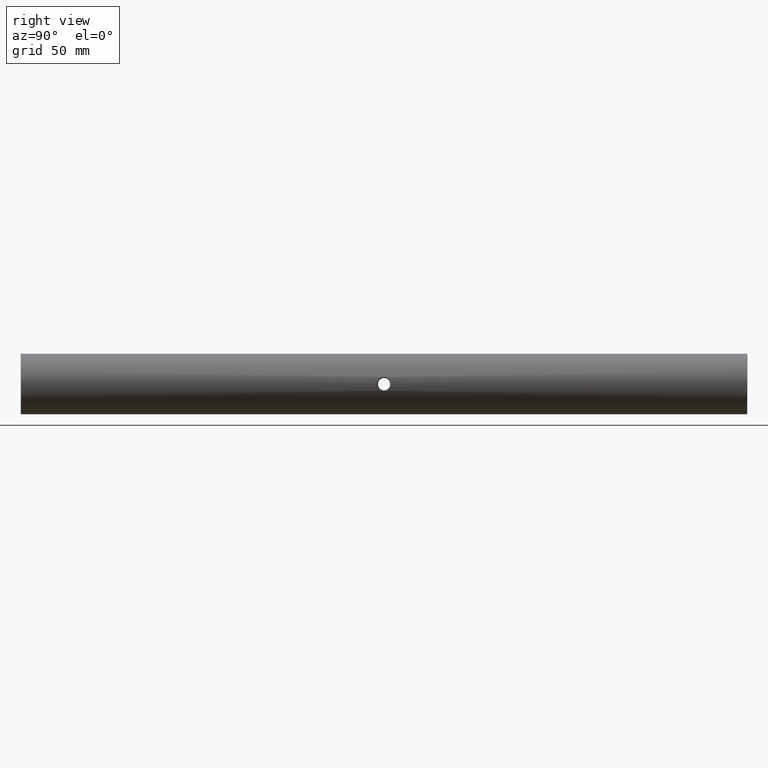
[diagram: clean part render]
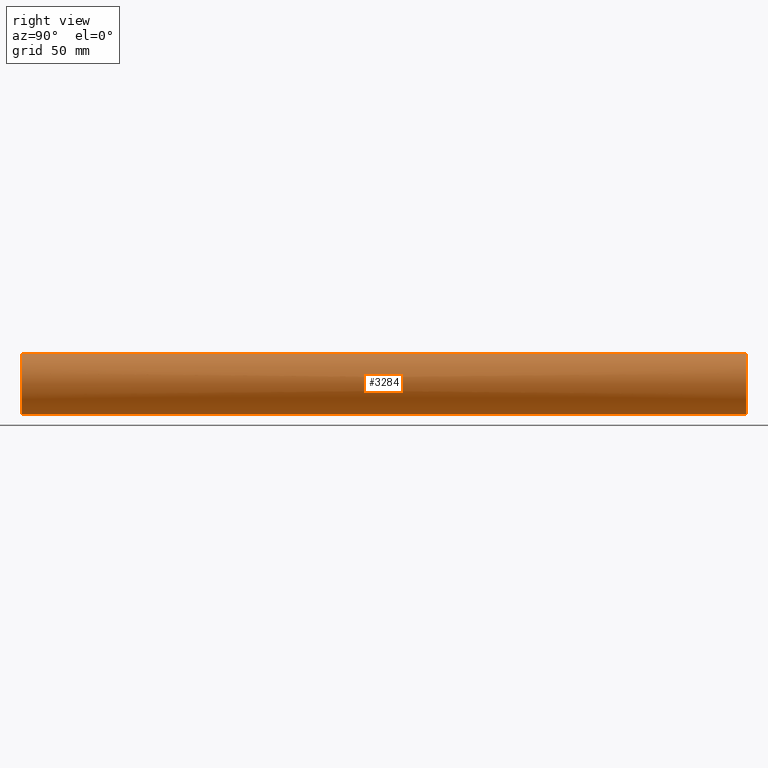
[diagram: same view with one face highlighted and labeled with its STEP entity id]
A machine part, right view. The second image highlights one B-rep face of the part: STEP entity #3284.
In plain terms, the highlighted cylindrical surface (edge-blend (fillet) strip) has radius 12.5 mm, axis along (-0, -1, -0).
Its self-contained STEP definition (entity closure, byte-faithful):
#29 = AXIS2_PLACEMENT_3D ( 'NONE', #2616, #239, #1851 ) ;
#53 = B_SPLINE_CURVE_WITH_KNOTS ( 'NONE', 3,
 ( #1217, #2277, #2318, #2014, #164, #2297, #2054, #2033, #3101, #708, #1507, #3380, #727, #3066, #2804, #2770, #989, #2526, #1702, #2032, #1454, #1199, #130, #2820, #1471, #655, #1181, #163, #423, #444, #1718, #2543 ),
 .UNSPECIFIED., .F., .F.,
 ( 4, 2, 2, 2, 2, 2, 2, 2, 2, 2, 2, 2, 2, 2, 2, 4 ),
 ( 0.0000000000000000000, 0.06250000000000004163, 0.09374999999999983347, 0.1249999999999996392, 0.1562499999999994449, 0.1874999999999992228, 0.2187499999999990286, 0.2499999999999988343, 0.2656249999999992784, 0.2812499999999997224, 0.3124999999999995559, 0.3437499999999993339, 0.3749999999999991118, 0.4374999999999996114, 0.4687499999999998335, 0.5000000000000000000 ),
 .UNSPECIFIED. ) ;
#67 = CARTESIAN_POINT ( 'NONE',  ( -22.50520183104453409, -148.3517478152305955, 37.50000000000000711 ) ) ;
#96 = CARTESIAN_POINT ( 'NONE',  ( -10.34847189391649103, 1.398252184769385842, 47.09071877678784546 ) ) ;
#110 = CARTESIAN_POINT ( 'NONE',  ( -10.13120772191423313, 3.643678481292822902, 48.20895563084074098 ) ) ;
#124 = EDGE_LOOP ( 'NONE', ( #930, #1432 ) ) ;
#126 = CARTESIAN_POINT ( 'NONE',  ( -10.34839696664176856, 1.768149378122863213, 52.90896813174319391 ) ) ;
#130 = CARTESIAN_POINT ( 'NONE',  ( -10.08992494495355352, -1.039449522054082475, 51.46152594126763091 ) ) ;
#163 = CARTESIAN_POINT ( 'NONE',  ( -10.31357678706532965, 0.4914312575702207697, 52.76042022121066566 ) ) ;
#164 = CARTESIAN_POINT ( 'NONE',  ( -10.26201457401355910, -0.01335821443696855182, 47.47692398625810029 ) ) ;
#181 = VERTEX_POINT ( 'NONE', #877 ) ;
#239 = DIRECTION ( 'NONE',  ( -0.0000000000000000000, -1.000000000000000000, -0.0000000000000000000 ) ) ;
#255 = CIRCLE ( 'NONE', #2035, 12.49999999999999645 ) ;
#321 = VERTEX_POINT ( 'NONE', #67 ) ;
#340 = CARTESIAN_POINT ( 'NONE',  ( -10.00518440457559777, 4.209659017141441417, 50.09320650238487360 ) ) ;
#355 = CARTESIAN_POINT ( 'NONE',  ( -10.13051884925124391, 3.634910052708985706, 51.77268452524612741 ) ) ;
#371 = CARTESIAN_POINT ( 'NONE',  ( -10.34847154019206705, 1.401086072872706589, 52.90927974513797949 ) ) ;
#386 = CARTESIAN_POINT ( 'NONE',  ( -10.34848894705066158, 1.765824933951768205, 47.09064751851793318 ) ) ;
#422 = VERTEX_POINT ( 'NONE', #1122 ) ;
#423 = CARTESIAN_POINT ( 'NONE',  ( -10.32641410112791469, 0.6672506221123973846, 52.81577975407083869 ) ) ;
#444 = CARTESIAN_POINT ( 'NONE',  ( -10.34401387725410437, 1.031674240365127115, 52.89084654493891691 ) ) ;
#548 = CARTESIAN_POINT ( 'NONE',  ( -22.50520183104453409, -148.3517478152305955, 50.00000000000000000 ) ) ;
#603 = CARTESIAN_POINT ( 'NONE',  ( -10.01384831664372221, 4.173523745999228929, 50.47415274408302110 ) ) ;
#635 = CARTESIAN_POINT ( 'NONE',  ( -10.03956905277287959, 4.064168843856187152, 49.05718252096340848 ) ) ;
#655 = CARTESIAN_POINT ( 'NONE',  ( -10.22067027173308595, -0.3289239817678232258, 52.32705980222888797 ) ) ;
#708 = CARTESIAN_POINT ( 'NONE',  ( -10.08961095990383861, -1.040983855268379221, 48.54098388018959298 ) ) ;
#726 = FACE_BOUND ( 'NONE', #124, .T. ) ;
#727 = CARTESIAN_POINT ( 'NONE',  ( -10.02677036315507308, -1.322359924773151452, 49.24218911815104605 ) ) ;
#797 = EDGE_CURVE ( 'NONE', #1251, #2993, #1821, .T. ) ;
#800 = CYLINDRICAL_SURFACE ( 'NONE', #29, 12.49999999999999645 ) ;
#810 = DIRECTION ( 'NONE',  ( -0.0000000000000000000, -1.000000000000000000, -0.0000000000000000000 ) ) ;
#877 = CARTESIAN_POINT ( 'NONE',  ( -22.50520183104453409, 151.1482521847693761, 37.50000000000000711 ) ) ;
#881 = CARTESIAN_POINT ( 'NONE',  ( -10.15294739810488345, 3.517539804804792336, 51.92107485688485013 ) ) ;
#930 = ORIENTED_EDGE ( 'NONE', *, *, #2781, .T. ) ;
#956 = EDGE_CURVE ( 'NONE', #181, #422, #1670, .T. ) ;
#987 = ORIENTED_EDGE ( 'NONE', *, *, #1161, .T. ) ;
#989 = CARTESIAN_POINT ( 'NONE',  ( -10.00627837453444968, -1.408621410719411493, 50.18986673007049149 ) ) ;
#1040 = VECTOR ( 'NONE', #810, 1000.000000000000000 ) ;
#1122 = CARTESIAN_POINT ( 'NONE',  ( -22.50520183104453409, 151.1482521847693761, 62.50000000000000000 ) ) ;
#1126 = DIRECTION ( 'NONE',  ( 0.0000000000000000000, 1.000000000000000000, 0.0000000000000000000 ) ) ;
#1155 = EDGE_CURVE ( 'NONE', #181, #321, #1318, .T. ) ;
#1161 = EDGE_CURVE ( 'NONE', #422, #1198, #1876, .T. ) ;
#1181 = CARTESIAN_POINT ( 'NONE',  ( -10.26514075146266869, -0.02094479338466770021, 52.54036784948630157 ) ) ;
#1198 = VERTEX_POINT ( 'NONE', #1657 ) ;
#1199 = CARTESIAN_POINT ( 'NONE',  ( -10.07084455742844753, -1.127609090074838116, 51.29153715517295353 ) ) ;
#1217 = CARTESIAN_POINT ( 'NONE',  ( -10.34847189391649103, 1.398252184769385842, 47.09071877678784546 ) ) ;
#1251 = VERTEX_POINT ( 'NONE', #2419 ) ;
#1318 = LINE ( 'NONE', #1860, #1040 ) ;
#1419 = CARTESIAN_POINT ( 'NONE',  ( -10.00523732347763151, 4.209438793494676645, 49.80666152472035435 ) ) ;
#1432 = ORIENTED_EDGE ( 'NONE', *, *, #797, .T. ) ;
#1434 = CARTESIAN_POINT ( 'NONE',  ( -10.32931247820093468, 2.139314989375371567, 52.83196653080785410 ) ) ;
#1454 = CARTESIAN_POINT ( 'NONE',  ( -10.03926934905724977, -1.268979855264001699, 50.93906143870134429 ) ) ;
#1471 = CARTESIAN_POINT ( 'NONE',  ( -10.15310274898453713, -0.7201770143198761298, 51.92207674292411923 ) ) ;
#1507 = CARTESIAN_POINT ( 'NONE',  ( -10.07065230751083007, -1.128473363255287021, 48.71045361175776378 ) ) ;
#1578 = EDGE_CURVE ( 'NONE', #1198, #321, #255, .T. ) ;
#1612 = DIRECTION ( 'NONE',  ( 0.0000000000000000000, 0.0000000000000000000, 1.000000000000000000 ) ) ;
#1649 = ORIENTED_EDGE ( 'NONE', *, *, #956, .T. ) ;
#1657 = CARTESIAN_POINT ( 'NONE',  ( -22.50520183104453409, -148.3517478152305955, 62.50000000000000000 ) ) ;
#1670 = CIRCLE ( 'NONE', #3067, 12.49999999999999645 ) ;
#1683 = CARTESIAN_POINT ( 'NONE',  ( -10.26171685817577206, 2.812244921769373907, 52.52163236106915889 ) ) ;
#1699 = CARTESIAN_POINT ( 'NONE',  ( -10.26240494946089221, 2.806784448252618080, 47.47501714752194601 ) ) ;
#1702 = CARTESIAN_POINT ( 'NONE',  ( -10.01393814977559238, -1.376641194419659042, 50.47655221270715487 ) ) ;
#1714 = CARTESIAN_POINT ( 'NONE',  ( -10.08950009454101782, 3.837971256732418013, 51.45792308305858143 ) ) ;
#1718 = CARTESIAN_POINT ( 'NONE',  ( -10.34850882696721541, 1.217554420247624059, 52.90943555183537939 ) ) ;
#1760 = DIRECTION ( 'NONE',  ( 0.0000000000000000000, 0.0000000000000000000, 1.000000000000000000 ) ) ;
#1789 = FACE_OUTER_BOUND ( 'NONE', #2856, .T. ) ;
#1821 = B_SPLINE_CURVE_WITH_KNOTS ( 'NONE', 3,
 ( #371, #126, #1434, #2214, #1683, #2490, #2749, #881, #355, #1714, #1959, #2227, #2735, #603, #2800, #2505, #340, #1419, #3045, #3028, #635, #2257, #110, #2783, #2241, #1699, #2767, #3308, #386, #96 ),
 .UNSPECIFIED., .F., .F.,
 ( 4, 2, 2, 2, 2, 2, 2, 2, 2, 2, 2, 2, 2, 2, 4 ),
 ( 0.5000000000000000000, 0.5625000000000000000, 0.5937500000000000000, 0.6250000000000000000, 0.6562500000000000000, 0.6875000000000001110, 0.7187500000000000000, 0.7343750000000005551, 0.7500000000000011102, 0.7812500000000011102, 0.8125000000000008882, 0.8750000000000008882, 0.9062500000000007772, 0.9375000000000006661, 1.000000000000000000 ),
 .UNSPECIFIED. ) ;
#1851 = DIRECTION ( 'NONE',  ( 0.0000000000000000000, 0.0000000000000000000, -1.000000000000000000 ) ) ;
#1860 = CARTESIAN_POINT ( 'NONE',  ( -22.50520183104453409, 151.3982521847693761, 37.50000000000000711 ) ) ;
#1876 = LINE ( 'NONE', #3187, #3221 ) ;
#1959 = CARTESIAN_POINT ( 'NONE',  ( -10.07078360413767903, 3.924386101507545632, 51.29104044072190050 ) ) ;
#2014 = CARTESIAN_POINT ( 'NONE',  ( -10.28120580032835640, 0.1491743861446829800, 47.38666087822814177 ) ) ;
#2032 = CARTESIAN_POINT ( 'NONE',  ( -10.02675186171648747, -1.322443306109865935, 50.75721055768880063 ) ) ;
#2033 = CARTESIAN_POINT ( 'NONE',  ( -10.15309026956969696, -0.7201977726382834399, 48.07808007614166712 ) ) ;
#2035 = AXIS2_PLACEMENT_3D ( 'NONE', #548, #1126, #1612 ) ;
#2054 = CARTESIAN_POINT ( 'NONE',  ( -10.19775323584346616, -0.4616773627357609877, 47.81021797949490804 ) ) ;
#2214 = CARTESIAN_POINT ( 'NONE',  ( -10.28116133935086296, 2.647623010407560873, 52.61312323638020416 ) ) ;
#2227 = CARTESIAN_POINT ( 'NONE',  ( -10.03912386684485547, 4.066135811496543795, 50.93725250157471152 ) ) ;
#2241 = CARTESIAN_POINT ( 'NONE',  ( -10.22069015971736050, 3.112715133759648811, 47.68647738587910112 ) ) ;
#2257 = CARTESIAN_POINT ( 'NONE',  ( -10.08673579313793667, 3.852910402471710682, 48.53189826260197748 ) ) ;
#2277 = CARTESIAN_POINT ( 'NONE',  ( -10.34845463298328205, 1.026200419293364030, 47.09079090336737039 ) ) ;
#2288 = CARTESIAN_POINT ( 'NONE',  ( -22.50520183104453409, 151.1482521847693761, 50.00000000000000000 ) ) ;
#2297 = CARTESIAN_POINT ( 'NONE',  ( -10.22044804820621522, -0.3177678143818272183, 47.68777784871677738 ) ) ;
#2318 = CARTESIAN_POINT ( 'NONE',  ( -10.32954370542806544, 0.6599845769583536637, 47.16701032379178571 ) ) ;
#2419 = CARTESIAN_POINT ( 'NONE',  ( -10.34847154019206705, 1.401086072872706589, 52.90927974513797949 ) ) ;
#2425 = ORIENTED_EDGE ( 'NONE', *, *, #1155, .F. ) ;
#2490 = CARTESIAN_POINT ( 'NONE',  ( -10.22016270264403737, 3.116156845188982949, 52.31070717723454067 ) ) ;
#2505 = CARTESIAN_POINT ( 'NONE',  ( -10.00627509751153355, 4.205142563660633215, 50.18968306966531401 ) ) ;
#2526 = CARTESIAN_POINT ( 'NONE',  ( -10.01064372293300941, -1.390416779130479119, 50.38099164021046761 ) ) ;
#2543 = CARTESIAN_POINT ( 'NONE',  ( -10.34847154019206705, 1.401086072872706589, 52.90927974513797949 ) ) ;
#2597 = ORIENTED_EDGE ( 'NONE', *, *, #1578, .T. ) ;
#2616 = CARTESIAN_POINT ( 'NONE',  ( -22.50520183104453409, 151.3982521847693761, 50.00000000000000000 ) ) ;
#2735 = CARTESIAN_POINT ( 'NONE',  ( -10.02657681141787194, 4.119691500591116551, 50.75422238455730195 ) ) ;
#2749 = CARTESIAN_POINT ( 'NONE',  ( -10.19795443138487734, 3.257006472723699808, 52.19097686555633686 ) ) ;
#2767 = CARTESIAN_POINT ( 'NONE',  ( -10.28138215995917548, 2.645685024900434890, 47.38584113134645293 ) ) ;
#2770 = CARTESIAN_POINT ( 'NONE',  ( -10.00520407681040780, -1.413074357617931431, 50.09552809953513020 ) ) ;
#2781 = EDGE_CURVE ( 'NONE', #2993, #1251, #53, .T. ) ;
#2783 = CARTESIAN_POINT ( 'NONE',  ( -10.19821154777529060, 3.255369150902576170, 47.80765360770963213 ) ) ;
#2800 = CARTESIAN_POINT ( 'NONE',  ( -10.01064152821407482, 4.186927187749860835, 50.38093568496127261 ) ) ;
#2804 = CARTESIAN_POINT ( 'NONE',  ( -10.00519734990737319, -1.413097615914108873, 49.80982674692005219 ) ) ;
#2820 = CARTESIAN_POINT ( 'NONE',  ( -10.13100719880479872, -0.8359003743313537793, 51.77608148426598689 ) ) ;
#2856 = EDGE_LOOP ( 'NONE', ( #1649, #987, #2597, #2425 ) ) ;
#2975 = DIRECTION ( 'NONE',  ( -0.0000000000000000000, -1.000000000000000000, -0.0000000000000000000 ) ) ;
#2993 = VERTEX_POINT ( 'NONE', #3049 ) ;
#3028 = CARTESIAN_POINT ( 'NONE',  ( -10.02677590330623403, 4.118849129150300215, 49.24228715506887966 ) ) ;
#3045 = CARTESIAN_POINT ( 'NONE',  ( -10.00964959995894077, 4.191281611644707361, 49.61735547875732522 ) ) ;
#3049 = CARTESIAN_POINT ( 'NONE',  ( -10.34847189391649103, 1.398252184769385842, 47.09071877678784546 ) ) ;
#3066 = CARTESIAN_POINT ( 'NONE',  ( -10.00959453157823731, -1.395018423901930316, 49.61878162559091976 ) ) ;
#3067 = AXIS2_PLACEMENT_3D ( 'NONE', #2288, #3350, #1760 ) ;
#3101 = CARTESIAN_POINT ( 'NONE',  ( -10.13104527352238726, -0.8357329463647144019, 48.22352196541854852 ) ) ;
#3187 = CARTESIAN_POINT ( 'NONE',  ( -22.50520183104453409, 151.3982521847693761, 62.50000000000000000 ) ) ;
#3221 = VECTOR ( 'NONE', #2975, 1000.000000000000000 ) ;
#3284 = ADVANCED_FACE ( 'NONE', ( #726, #1789 ), #800, .T. ) ;
#3308 = CARTESIAN_POINT ( 'NONE',  ( -10.32961809029533384, 2.135293394174129666, 47.16670927381291989 ) ) ;
#3350 = DIRECTION ( 'NONE',  ( -0.0000000000000000000, -1.000000000000000000, -0.0000000000000000000 ) ) ;
#3380 = CARTESIAN_POINT ( 'NONE',  ( -10.03928546548424272, -1.268904155908125997, 49.06091485609822911 ) ) ;